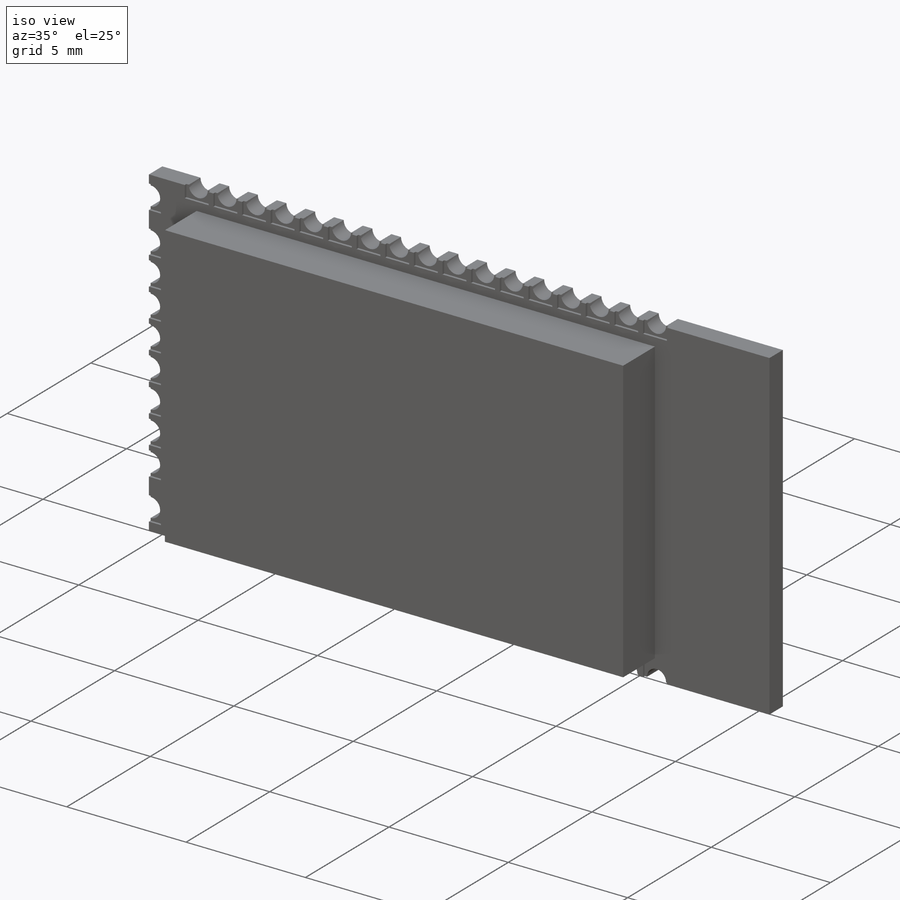
[diagram: iso view]
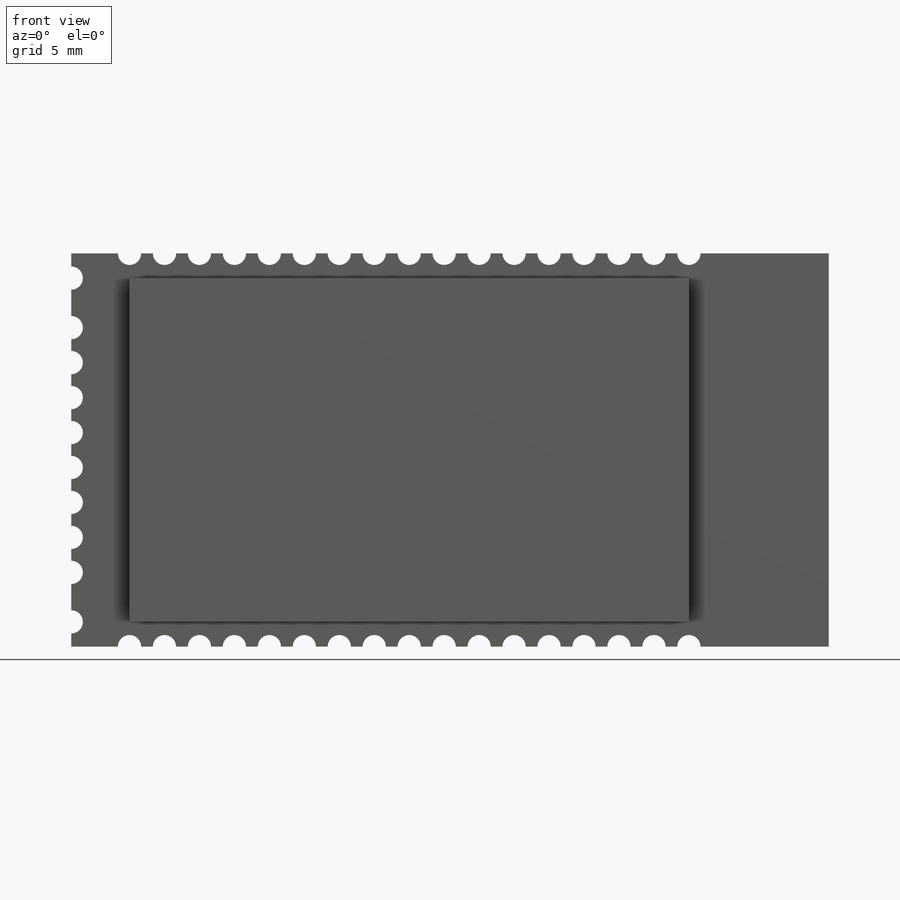
[diagram: front view]
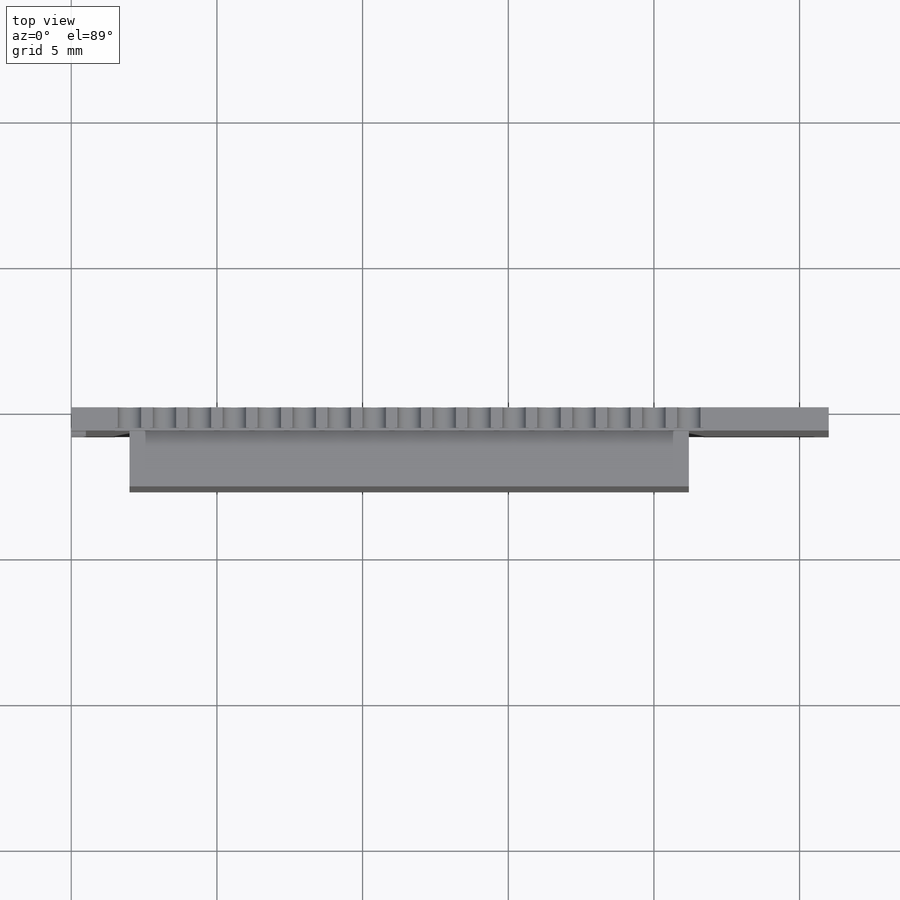
[diagram: top view]
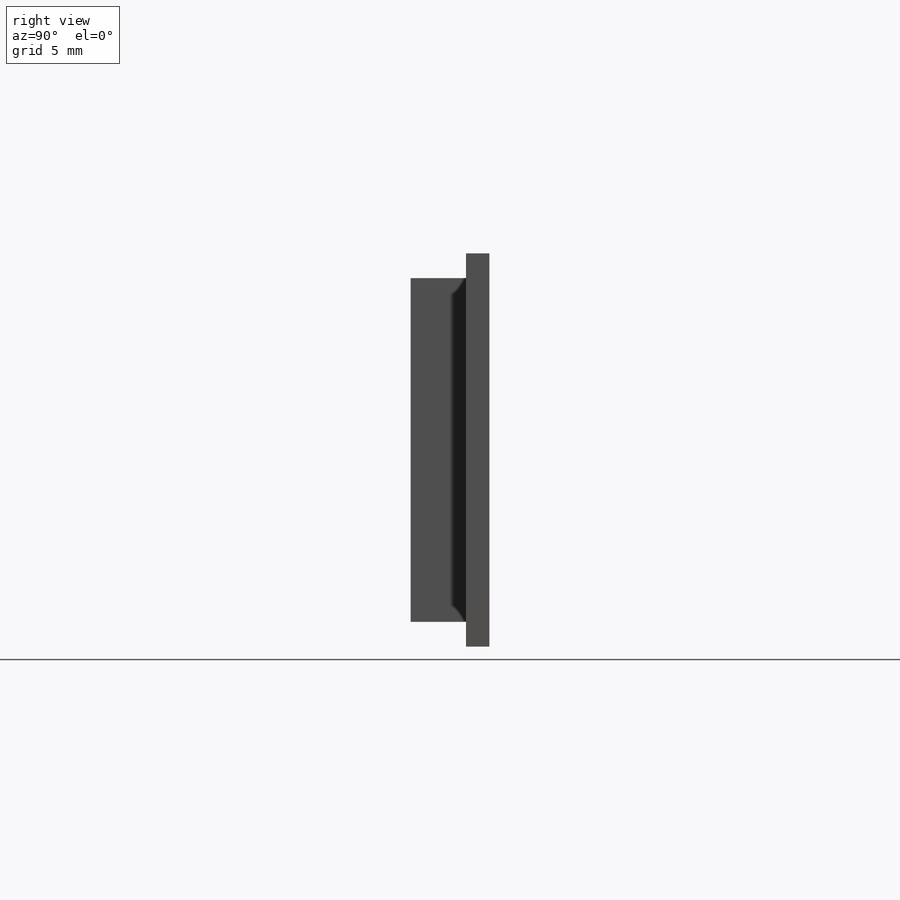
[diagram: right view]
SOLIDWORKS PART (.sldprt)
format: sldprt  version: not decoded by parser v0  size: 757,760 bytes
history: native  units: mm
features: sketch x8, cut_extrude x6, extrude x2, pattern_linear x2, material x1, plane x1, mirror x1 (+13 scaffold rows collapsed)
feature tree (34):
  scaffold x13  (default folders/planes/origin — collapsed)
  material  "Material <not specified>"
  sketch  "Sketch1"  dims[D1=26.0mm D2=13.5mm]
  extrude  "Boss-Extrude1"  Depth=0.8mm
  sketch  "Sketch2"  dims[D1=2.0mm D2=21.2mm D3=0.85mm D4=12.65mm]
  extrude  "Boss-Extrude2"  Depth=1.9mm
  plane  "Plane1"  Offset=6.75mm
  sketch  "Sketch3"  dims[D2=0.4mm D1=2.0mm]
  cut_extrude  "Cut-Extrude1"  [1 undecoded]
  sketch  "Sketch4"  dims[D1=1.0mm D2=0.5mm]
  cut_extrude  "Cut-Extrude2"  Depth=0.1mm
  sketch  "Sketch5"  dims[D2=0.4mm D1=0.85mm]
  cut_extrude  "Cut-Extrude3"  [1 undecoded]
  sketch  "Sketch6"  dims[D1=1.0mm D2=0.5mm]
  cut_extrude  "Cut-Extrude4"  Depth=0.1mm
  pattern_linear  "LPattern1"  Count1=17 Count2=1 Spacing1=1.2mm Spacing2=10mm
  mirror  "Mirror1"
  sketch  "Sketch7"  dims[D2=0.4mm D1=1.7mm]
  cut_extrude  "Cut-Extrude5"  [1 undecoded]
  sketch  "Sketch8"  dims[D1=1.0mm D2=0.5mm]
  cut_extrude  "Cut-Extrude6"  Depth=0.1mm
  pattern_linear  "LPattern3"  Count1=8 Count2=1 Spacing1=1.2mm Spacing2=10mm
decode coverage: 15 of 19 modeling features carry decoded parameters
note: 3 parameter values undecoded
summary: no parameter record found for 3 features
note: suppression state not decoded; provenance and decode notes live in map.json
